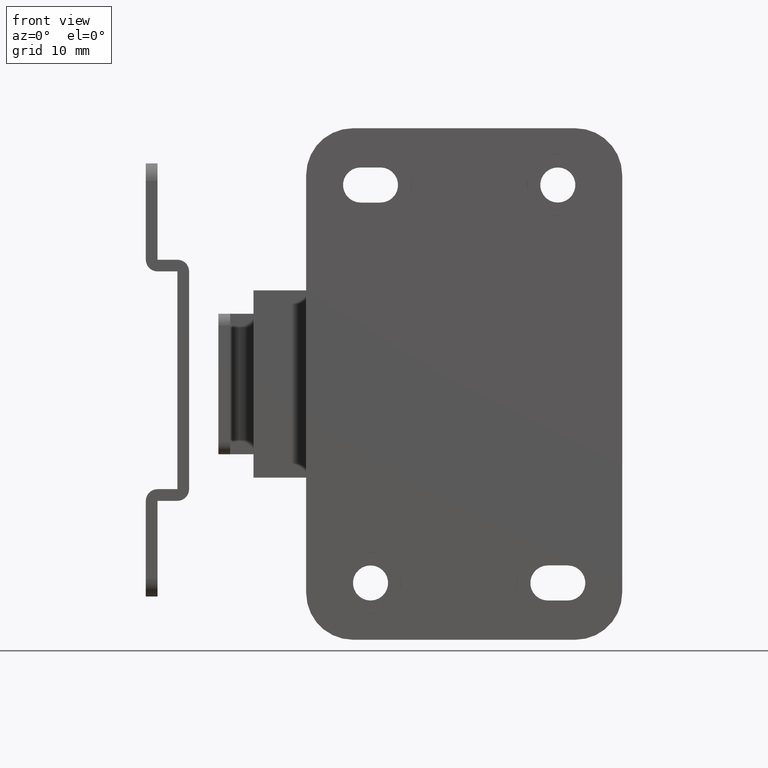
[diagram: clean part render]
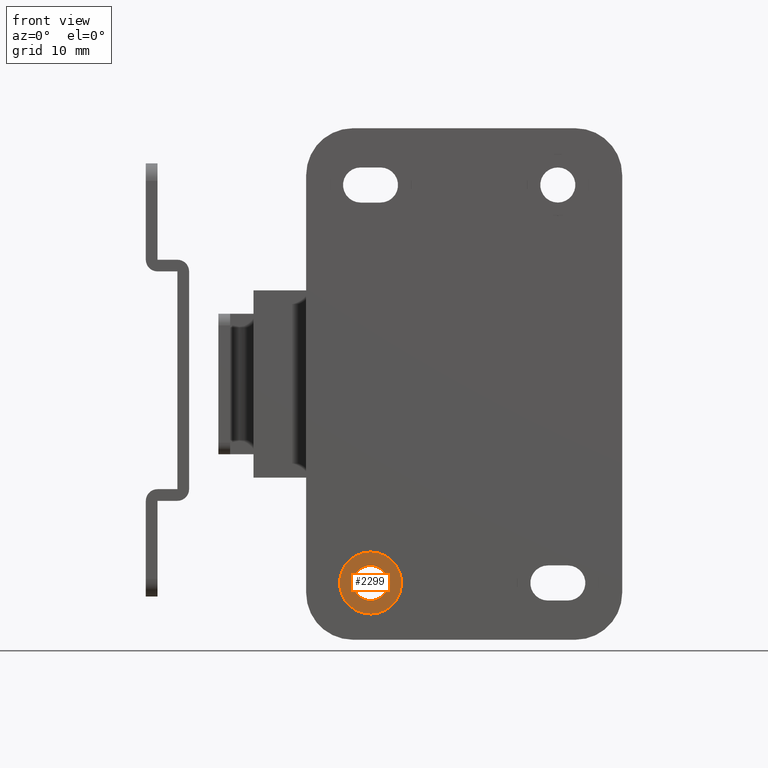
[diagram: same view with one face highlighted and labeled with its STEP entity id]
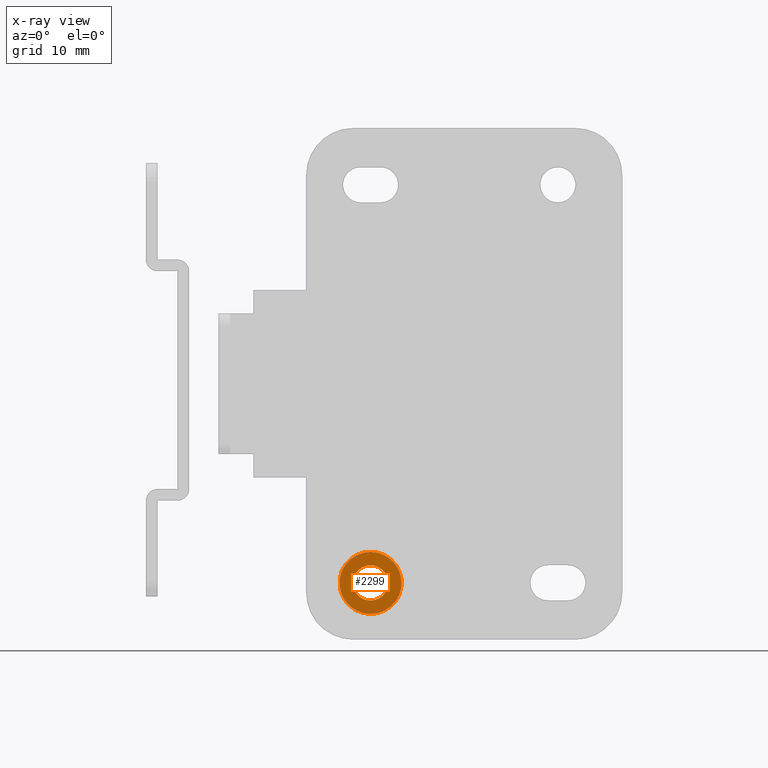
[diagram: x-ray of the same camera — body ghosted, the highlighted face saturated]
A machine part, front view. The second image highlights one B-rep face of the part: STEP entity #2299.
The next image is the same camera in x-ray: the body ghosted, the highlighted face saturated — about 0% of this face is hidden behind the body in this view.
In plain terms, the highlighted planar face has unit normal (0, -1, 0).
Its self-contained STEP definition (entity closure, byte-faithful):
#60=FACE_BOUND('',#852,.T.);
#89=PLANE('',#2485);
#707=FACE_OUTER_BOUND('',#851,.T.);
#851=EDGE_LOOP('',(#1746));
#852=EDGE_LOOP('',(#1747));
#1016=CIRCLE('',#2483,2.65);
#1018=CIRCLE('',#2486,1.5);
#1127=VERTEX_POINT('',#3547);
#1129=VERTEX_POINT('',#3552);
#1371=EDGE_CURVE('',#1127,#1127,#1016,.T.);
#1373=EDGE_CURVE('',#1129,#1129,#1018,.T.);
#1746=ORIENTED_EDGE('',*,*,#1371,.F.);
#1747=ORIENTED_EDGE('',*,*,#1373,.F.);
#2299=ADVANCED_FACE('',(#707,#60),#89,.T.);
#2483=AXIS2_PLACEMENT_3D('',#3548,#2846,#2847);
#2485=AXIS2_PLACEMENT_3D('',#3551,#2850,#2851);
#2486=AXIS2_PLACEMENT_3D('',#3553,#2852,#2853);
#2846=DIRECTION('center_axis',(0.,1.,0.));
#2847=DIRECTION('ref_axis',(1.,0.,2.48789473305357E-16));
#2850=DIRECTION('center_axis',(0.,-1.,0.));
#2851=DIRECTION('ref_axis',(0.,0.,-1.));
#2852=DIRECTION('center_axis',(0.,-1.,0.));
#2853=DIRECTION('ref_axis',(1.,0.,0.));
#3547=CARTESIAN_POINT('',(-19.65,1.2,-5.5));
#3548=CARTESIAN_POINT('Origin',(-17.,1.2,-5.5));
#3551=CARTESIAN_POINT('Origin',(-17.,1.2,-5.5));
#3552=CARTESIAN_POINT('',(-18.5,1.2,-5.5));
#3553=CARTESIAN_POINT('Origin',(-17.,1.2,-5.5));